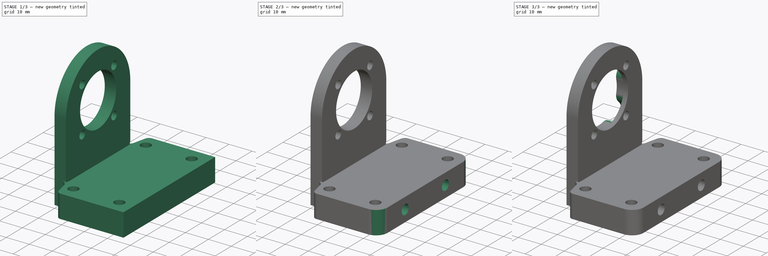
[diagram: build sequence overview — one tinted view per stage of 3, left to right]
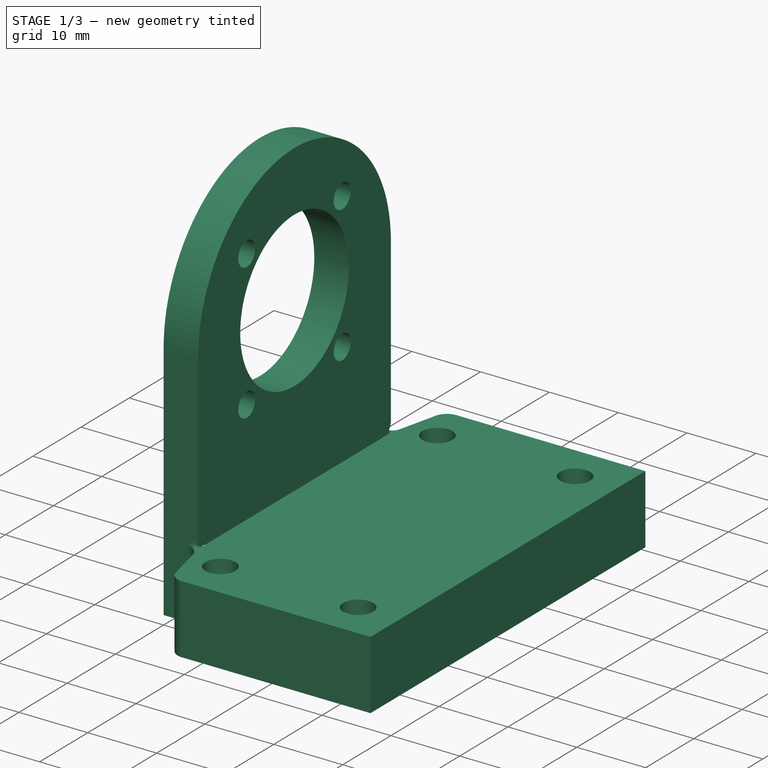
[diagram: stage 1 of 3 — iso view after this stage's code; geometry added in this stage tinted green]
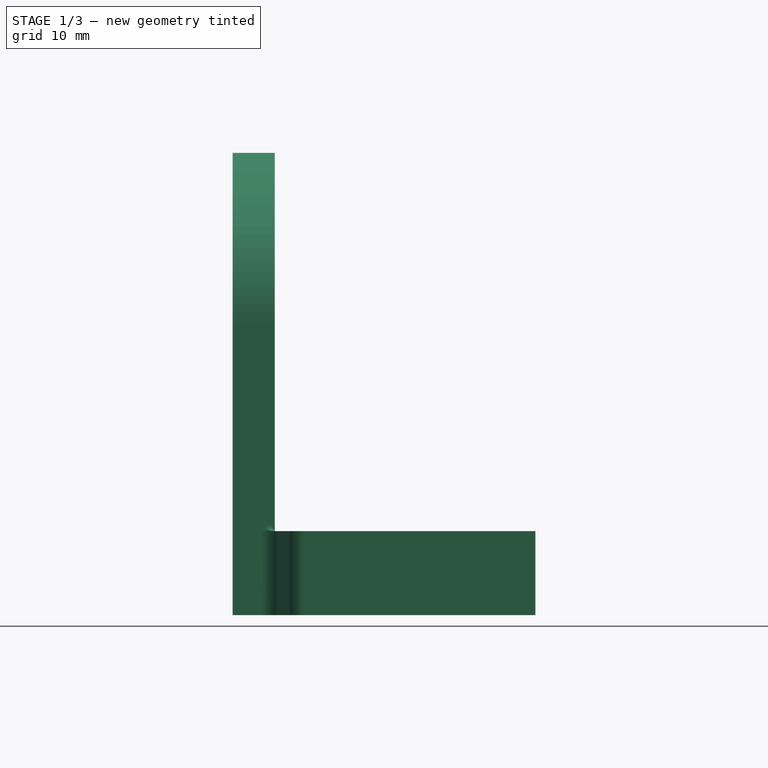
[diagram: stage 1 of 3 — front view after this stage's code; geometry added in this stage tinted green]
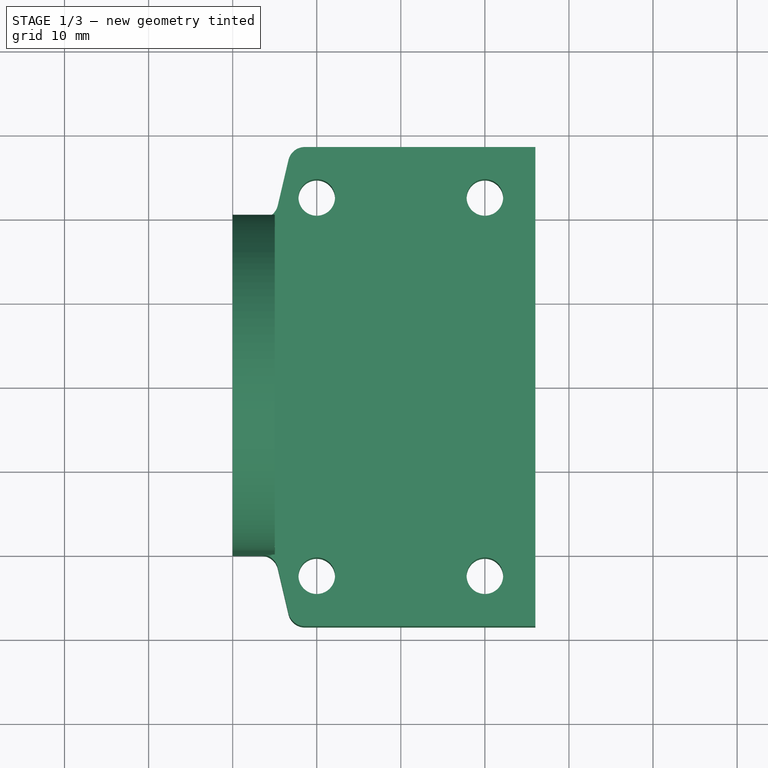
[diagram: stage 1 of 3 — top view after this stage's code; geometry added in this stage tinted green]
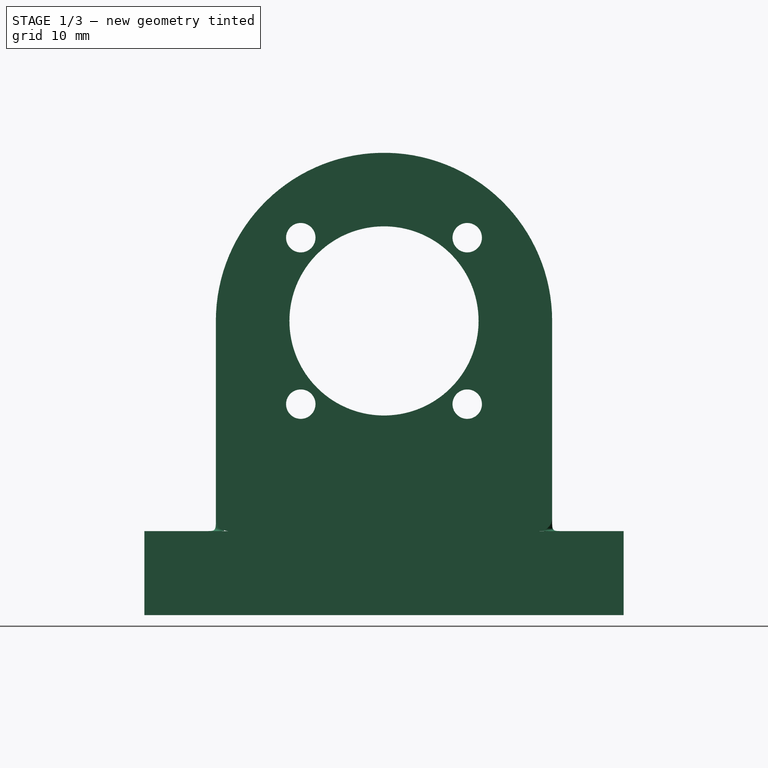
[diagram: stage 1 of 3 — right view after this stage's code; geometry added in this stage tinted green]
FCSTD DOCUMENT  (FreeCAD 1.1R42863 (Git))
Label: SlidesMotorMount
License: All rights reserved
LicenseURL: https://en.wikipedia.org/wiki/All_rights_reserved
objects: Sketcher::SketchObject×4, PartDesign::Fillet×3, PartDesign::Pad×2, PartDesign::Pocket×2, App::Point×1, PartDesign::PolarPattern×1, PartDesign::Body×1
note: 32 computed .brp shape members not serialized (recipe doc carries the construction recipe); baked Part::Feature solids carry a one-line shape summary decoded from their .brp
EXTERNAL_REF file=../Variables.FCStd obj=Spreadsheet

FEATURE [App::Point] Origin001
  Role = Origin
FEATURE [Sketcher::SketchObject] Sketch
  ArcFitTolerance = 1e-06
  AttachmentSupport = -> [YZ_Plane]
  ExternalTypes = [0]
  FullyConstrained = true
  MakeInternals = false
  MapMode = 5
  Placement = pos=(0,0,0) rot=(0.57735,0.57735,0.57735;2.0944rad)
  sketch-geometry (14):
    g0: Circle CenterX=0 CenterY=0 CenterZ=0 NormalX=0 NormalY=0 NormalZ=1 AngleXU=0 Radius=11.25
    g1: LineSegment [constr] StartX=-9.9 StartY=-9.9 StartZ=0 EndX=9.9 EndY=-9.9 EndZ=0
    g2: LineSegment [constr] StartX=9.9 StartY=-9.9 StartZ=0 EndX=9.9 EndY=9.9 EndZ=0
    g3: LineSegment [constr] StartX=9.9 StartY=9.9 StartZ=0 EndX=-9.9 EndY=9.9 EndZ=0
    g4: LineSegment [constr] StartX=-9.9 StartY=9.9 StartZ=0 EndX=-9.9 EndY=-9.9 EndZ=0
    g5: GeomPoint [constr] X=0 Y=0 Z=0
    g6: Circle CenterX=-9.9 CenterY=9.9 CenterZ=0 NormalX=0 NormalY=0 NormalZ=1 AngleXU=0 Radius=1.75
    g7: Circle CenterX=9.9 CenterY=9.9 CenterZ=0 NormalX=0 NormalY=0 NormalZ=1 AngleXU=0 Radius=1.75
    g8: Circle CenterX=9.9 CenterY=-9.9 CenterZ=0 NormalX=0 NormalY=0 NormalZ=1 AngleXU=0 Radius=1.75
    g9: Circle CenterX=-9.9 CenterY=-9.9 CenterZ=0 NormalX=0 NormalY=0 NormalZ=1 AngleXU=0 Radius=1.75
    g10: ArcOfCircle CenterX=0 CenterY=0 CenterZ=0 NormalX=0 NormalY=0 NormalZ=1 AngleXU=0 Radius=20 StartAngle=0 EndAngle=3.14159
    g11: LineSegment StartX=-20 StartY=2.4e-15 StartZ=0 EndX=-20 EndY=-35 EndZ=0
    g12: LineSegment StartX=-20 StartY=-35 StartZ=0 EndX=20 EndY=-35 EndZ=0
    g13: LineSegment StartX=20 StartY=-35 StartZ=0 EndX=20 EndY=0 EndZ=0
  constraints (34):
    c: Coincident(g0,g-1)
    c: Coincident(g1,g2)
    c: Coincident(g2,g3)
    c: Coincident(g3,g4)
    c: Coincident(g4,g1)
    c: Horizontal(g1)
    c: Horizontal(g3)
    c: Vertical(g2)
    c: Vertical(g4)
    c: Symmetric(g3,g1,g5)
    c: Coincident(g5,g0)
    c: DistanceX(g3,g3) = 19.8
    c: Equal(g2,g3)
    c: Diameter(g0) = 22.5
    c: Diameter(g6) = 3.5
    c: Coincident(g6,g3)
    c: Coincident(g7,g2)
    c: Coincident(g8,g1)
    c: Coincident(g9,g1)
    c: Equal(g9,g8)
    c: Equal(g8,g7)
    c: Equal(g7,g6)
    c: Coincident(g10,g0)
    c: PointOnObject(g10,g-1)
    c: PointOnObject(g10,g-1)
    c: Radius(g10) = 20
    c: Coincident(g11,g10)
    c: Vertical(g11)
    c: Coincident(g12,g11)
    c: Horizontal(g12)
    c: Coincident(g13,g12)
    c: Coincident(g13,g10)
    c: Vertical(g13)
    c: Distance(g0,g12) = 35
FEATURE [PartDesign::Pad] Pad
  Direction = (1,0,0)
  Length = 5
  Length2 = 10
  Placement = pos=(0,0,0) rot=(1,1,1;2.0944rad)
  Profile = -> Sketch
  ReferenceAxis = -> Sketch [N_Axis]
  Refine = true
  Suppressed = false
  Type = 0
FEATURE [Sketcher::SketchObject] Sketch001
  ArcFitTolerance = 1e-06
  AttachmentSupport = -> [Pad]
  ExternalGeometry = -> [Pad]
  ExternalTypes = [0,0]
  FullyConstrained = true
  MakeInternals = false
  MapMode = 5
  Placement = pos=(3.9e-15,-1.17e-14,-35) rot=(0.707107,0.707107,0;3.14159rad)
  expr: Constraints[12] = Variables#Spreadsheet.M4ThroughBoreDiam
  expr: Constraints[8] = Variables#Spreadsheet.SlidesMountY
  expr: Constraints[9] = Variables#Spreadsheet.SlidesMountX
  sketch-geometry (15):
    g0: LineSegment [constr] StartX=22.5 StartY=10 StartZ=0 EndX=22.5 EndY=30 EndZ=0
    g1: GeomPoint [constr] X=22.5 Y=20 Z=0
    g2: GeomPoint [constr] X=-22.5 Y=20 Z=0
    g3: LineSegment [constr] StartX=-22.5 StartY=10 StartZ=0 EndX=-22.5 EndY=30 EndZ=0
    g4: GeomPoint [constr] X=0 Y=20 Z=0
    g5: Circle CenterX=-22.5 CenterY=10 CenterZ=0 NormalX=0 NormalY=0 NormalZ=1 AngleXU=0 Radius=2.175
    g6: Circle CenterX=22.5 CenterY=10 CenterZ=0 NormalX=0 NormalY=0 NormalZ=1 AngleXU=0 Radius=2.175
    g7: Circle CenterX=22.5 CenterY=30 CenterZ=0 NormalX=0 NormalY=0 NormalZ=1 AngleXU=0 Radius=2.175
    g8: Circle CenterX=-22.5 CenterY=30 CenterZ=0 NormalX=0 NormalY=0 NormalZ=1 AngleXU=0 Radius=2.175
    g9: LineSegment StartX=-28.5 StartY=36 StartZ=0 EndX=28.5 EndY=36 EndZ=0
    g10: LineSegment StartX=20 StartY=5 StartZ=0 EndX=28.5 EndY=7 EndZ=0
    g11: LineSegment StartX=-20 StartY=5 StartZ=0 EndX=-28.5 EndY=7 EndZ=0
    g12: LineSegment StartX=-28.5 StartY=7 StartZ=0 EndX=-28.5 EndY=36 EndZ=0
    g13: GeomPoint [constr] X=0 Y=36 Z=0
    g14: LineSegment StartX=28.5 StartY=36 StartZ=0 EndX=28.5 EndY=7 EndZ=0
  constraints (34):
    c: Vertical(g0)
    c: Symmetric(g0,g0,g1)
    c: Vertical(g3)
    c: Symmetric(g3,g3,g2)
    c: Equal(g0,g3)
    c: Horizontal(g2,g1)
    c: PointOnObject(g4,g-2)
    c: Symmetric(g2,g1,g4)
    c: DistanceY(g3,g3) = 20
    c: Distance(g0,g3) = 45
    c: Distance(g4,g-4) = 15
    c: Coincident(g5,g3)
    c: Diameter(g5) = 4.35
    c: Coincident(g6,g0)
    c: Coincident(g7,g0)
    c: Coincident(g8,g3)
    c: Equal(g8,g5)
    c: Equal(g5,g6)
    c: Equal(g6,g7)
    c: Horizontal(g9)
    c: Coincident(g10,g-4)
    c: Coincident(g11,g-4)
    c: Coincident(g12,g11)
    c: Coincident(g12,g9)
    c: Vertical(g12)
    c: Symmetric(g9,g9,g13)
    c: PointOnObject(g13,g-2)
    c: Distance(g12,g3) = 6
    c: Distance(g3,g9) = 6
    c: DistanceY(g10,g0) = 3
    c: Horizontal(g11,g10)
    c: Coincident(g14,g9)
    c: Coincident(g14,g10)
    c: Vertical(g14)
FEATURE [PartDesign::Pad] Pad001
  BaseFeature = -> Pad
  Direction = (0,0,-1)
  Length = 10
  Length2 = 10
  Placement = pos=(0,0,0) rot=(1,1,1;2.0944rad)
  Profile = -> Sketch001
  ReferenceAxis = -> Sketch001 [N_Axis]
  Refine = true
  Reversed = true
  Suppressed = false
  Type = 0
FEATURE [PartDesign::Fillet] Fillet
  Base = -> Pad001 [Edge28,Edge12,Edge25,Edge7]
  BaseFeature = -> Pad001
  Placement = pos=(0,0,0) rot=(1,1,1;2.0944rad)
  Radius = 2
  Refine = true
  SupportTransform = false
  Suppressed = false
  UseAllEdges = false
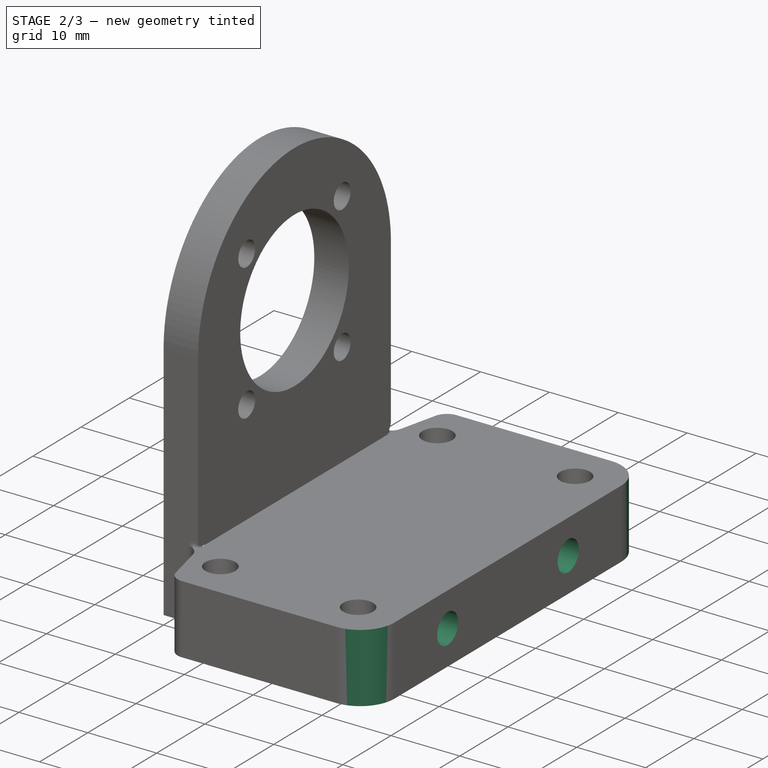
[diagram: stage 2 of 3 — iso view after this stage's code; geometry added in this stage tinted green]
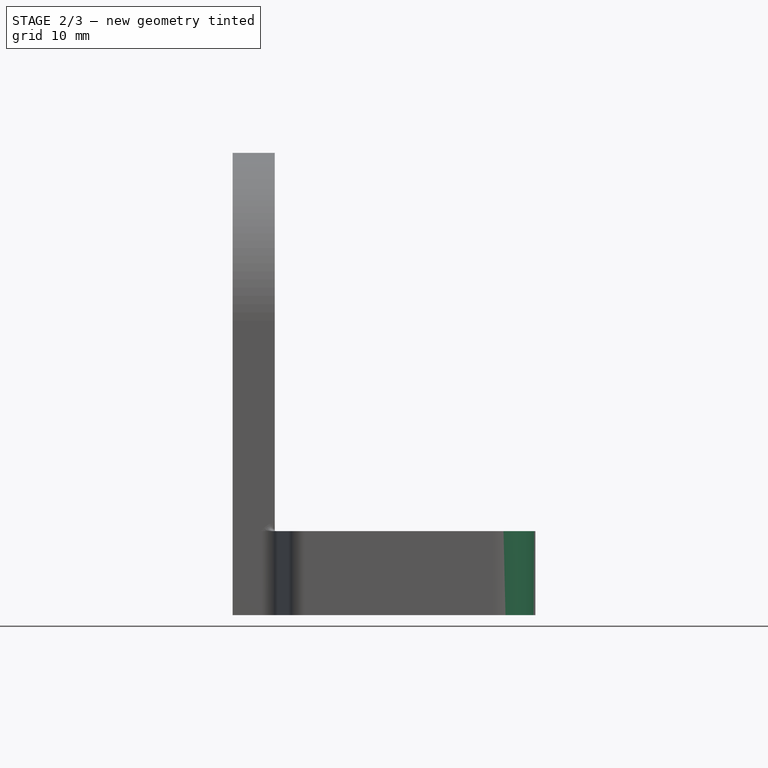
[diagram: stage 2 of 3 — front view after this stage's code; geometry added in this stage tinted green]
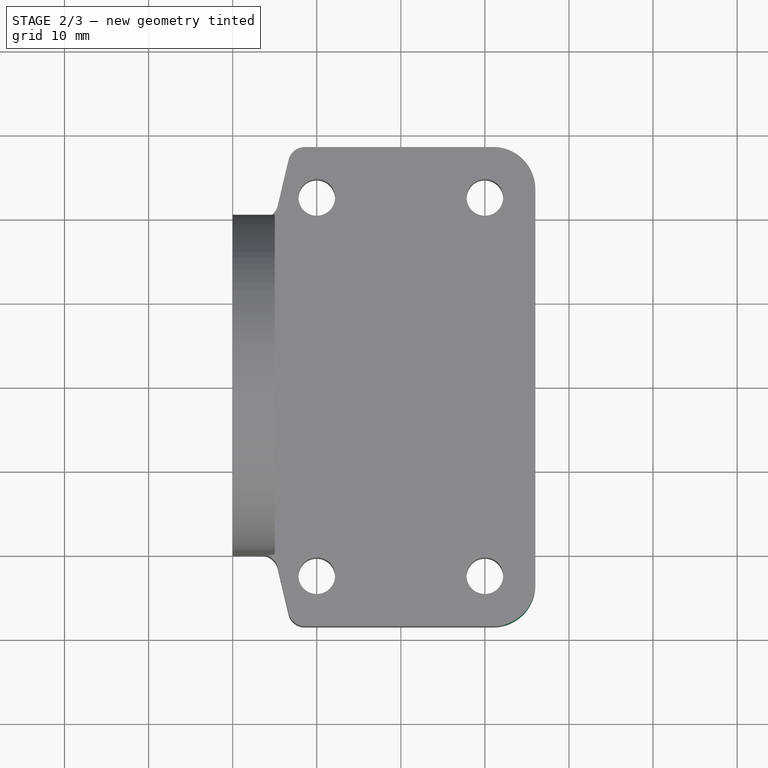
[diagram: stage 2 of 3 — top view after this stage's code; geometry added in this stage tinted green]
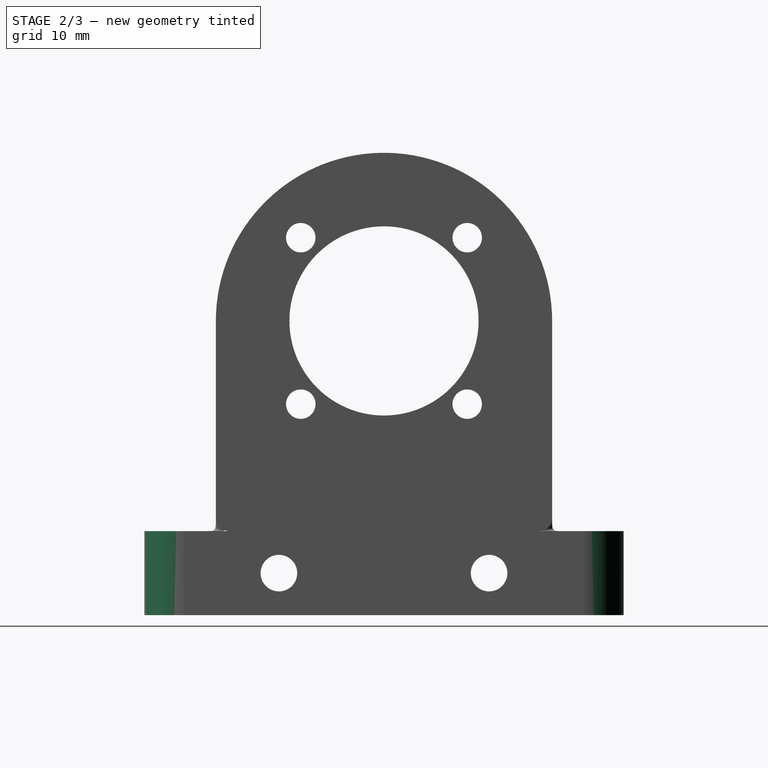
[diagram: stage 2 of 3 — right view after this stage's code; geometry added in this stage tinted green]
FEATURE [PartDesign::Fillet] Fillet001
  Base = -> Fillet [Edge55,Edge51]
  BaseFeature = -> Fillet
  Placement = pos=(0,0,0) rot=(1,1,1;2.0944rad)
  Radius = 5
  Refine = true
  SupportTransform = false
  Suppressed = false
  UseAllEdges = false
FEATURE [Sketcher::SketchObject] Sketch002
  ArcFitTolerance = 1e-06
  AttachmentSupport = -> [Fillet001]
  ExternalGeometry = -> [Fillet001]
  ExternalTypes = [0,0]
  FullyConstrained = true
  MakeInternals = false
  MapMode = 5
  Placement = pos=(3.2e-15,0,0) rot=(0.57735,0.57735,-0.57735;4.18879rad)
  expr: Constraints[8] = Variables#Spreadsheet.M4ThroughBoreDiam
  sketch-geometry (6):
    g0: GeomPoint [constr] X=-2.25e-14 Y=35 Z=0
    g1: GeomPoint [constr] X=26.9581 Y=30 Z=0
    g2: LineSegment [constr] StartX=-12.5 StartY=30 StartZ=0 EndX=12.5 EndY=30 EndZ=0
    g3: GeomPoint [constr] X=-2.25e-14 Y=30 Z=0
    g4: Circle CenterX=12.5 CenterY=30 CenterZ=0 NormalX=0 NormalY=0 NormalZ=1 AngleXU=0 Radius=2.175
    g5: Circle CenterX=-12.5 CenterY=30 CenterZ=0 NormalX=0 NormalY=0 NormalZ=1 AngleXU=0 Radius=2.175
  constraints (11):
    c: Symmetric(g-4,g-4,g0)
    c: Symmetric(g-3,g-3,g1)
    c: Distance(g2) = 25
    c: Horizontal(g2)
    c: Symmetric(g2,g2,g3)
    c: Vertical(g3,g0)
    c: Horizontal(g3,g1)
    c: Coincident(g4,g2)
    c: Diameter(g4) = 4.35
    c: Coincident(g5,g2)
    c: Equal(g4,g5)
FEATURE [PartDesign::Pocket] Pocket
  BaseFeature = -> Fillet001
  Direction = (1,0,0)
  Length = 0
  Length2 = 5
  Placement = pos=(0,0,0) rot=(1,1,1;2.0944rad)
  Profile = -> Sketch002
  ReferenceAxis = -> Sketch002 [N_Axis]
  Refine = true
  Suppressed = false
  Type = 3
  UpToFace = -> Fillet001 [Face5]
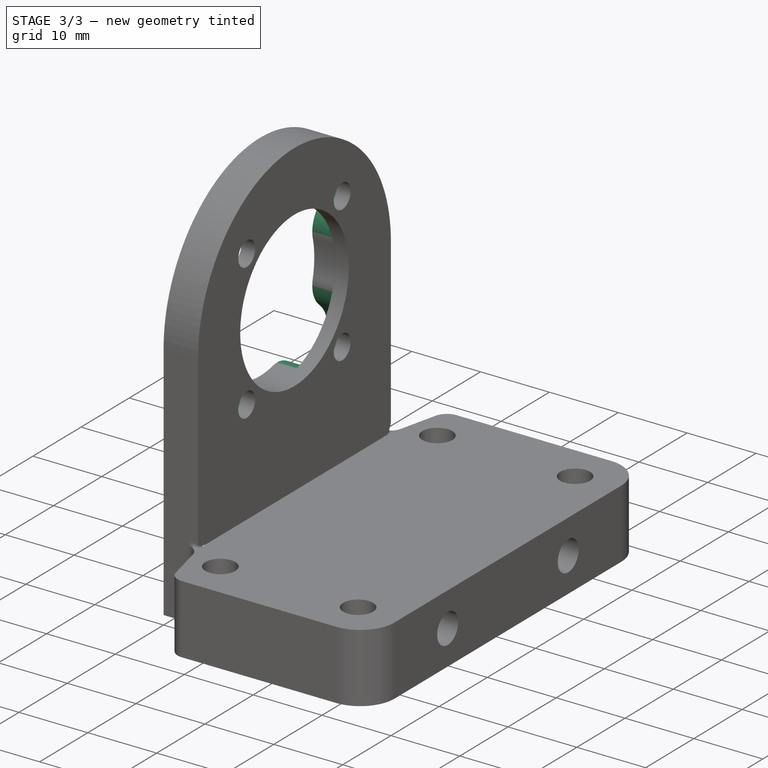
[diagram: stage 3 of 3 — iso view after this stage's code; geometry added in this stage tinted green]
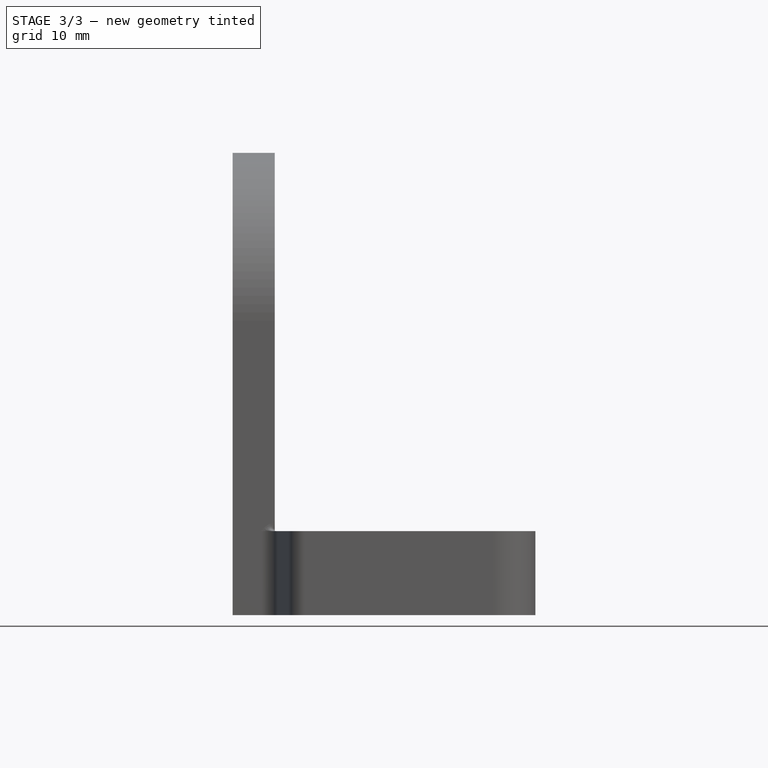
[diagram: stage 3 of 3 — front view after this stage's code; geometry added in this stage tinted green]
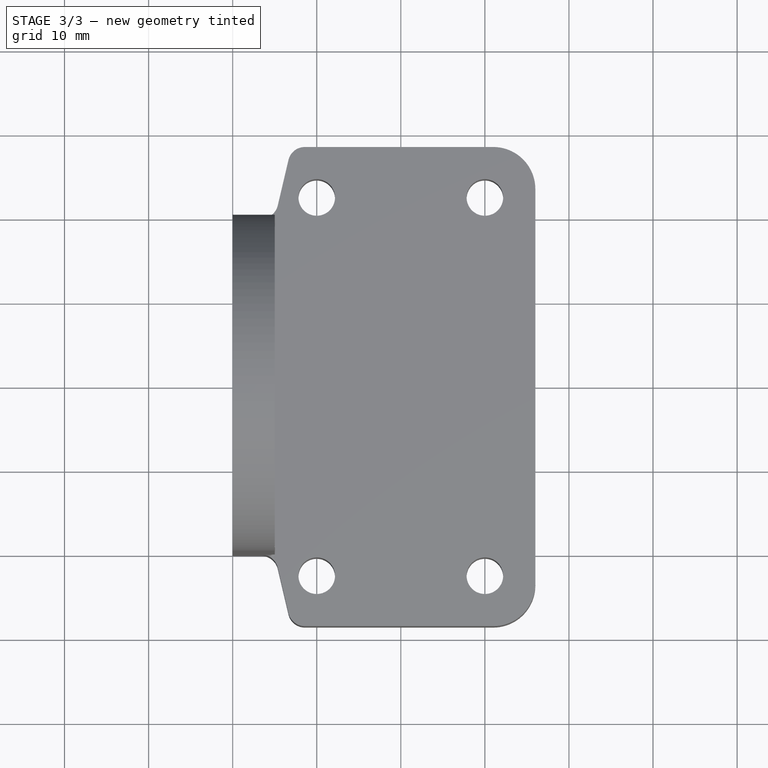
[diagram: stage 3 of 3 — top view after this stage's code; geometry added in this stage tinted green]
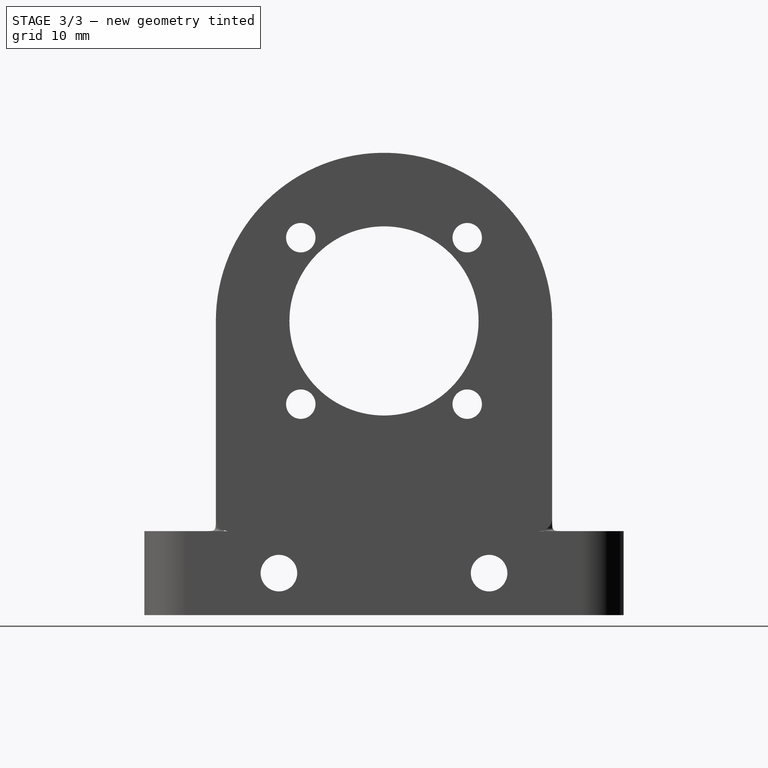
[diagram: stage 3 of 3 — right view after this stage's code; geometry added in this stage tinted green]
FEATURE [Sketcher::SketchObject] Sketch003
  ArcFitTolerance = 1e-06
  AttachmentSupport = -> [Pocket]
  ExternalGeometry = -> [Pocket]
  ExternalTypes = [0,0,0,0,0]
  FullyConstrained = true
  MakeInternals = false
  MapMode = 5
  Placement = pos=(4.9e-15,0,0) rot=(0.57735,0.57735,-0.57735;4.18879rad)
  sketch-geometry (4):
    g0: ArcOfCircle CenterX=-9.9 CenterY=-9.9 CenterZ=0 NormalX=0 NormalY=0 NormalZ=1 AngleXU=0 Radius=4 StartAngle=2.35619 EndAngle=5.49779
    g1: LineSegment StartX=-7.07157 StartY=-12.7284 StartZ=0 EndX=-4.60671 EndY=-10.2636 EndZ=0
    g2: LineSegment StartX=-12.7284 StartY=-7.07157 StartZ=0 EndX=-10.2636 EndY=-4.60671 EndZ=0
    g3: ArcOfCircle CenterX=7.468e-13 CenterY=8.769e-13 CenterZ=0 NormalX=0 NormalY=0 NormalZ=1 AngleXU=0 Radius=11.25 StartAngle=3.56348 EndAngle=4.2905
  constraints (11):
    c: Coincident(g0,g-4)
    c: PointOnObject(g1,g-3)
    c: PointOnObject(g2,g-3)
    c: Parallel(g2,g1)
    c: Equal(g1,g2)
    c: Diameter(g0) = 8
    c: Tangent(g0,g1) = -1.5708
    c: Tangent(g0,g2) = 1.5708
    c: Coincident(g3,g2)
    c: Coincident(g3,g1)
    c: Equal(g3,g-3)
FEATURE [PartDesign::Pocket] Pocket001
  BaseFeature = -> Pocket
  Direction = (1,0,0)
  Length = 3
  Length2 = 5
  Offset = 2
  Placement = pos=(0,0,0) rot=(1,1,1;2.0944rad)
  Profile = -> Sketch003
  ReferenceAxis = -> Sketch003 [N_Axis]
  Refine = true
  Suppressed = false
  Type = 0
FEATURE [PartDesign::Fillet] Fillet002
  Base = -> Pocket001 [Edge87,Edge89]
  BaseFeature = -> Pocket001
  Placement = pos=(0,0,0) rot=(1,1,1;2.0944rad)
  Radius = 4
  Refine = true
  SupportTransform = false
  Suppressed = false
  UseAllEdges = false
FEATURE [PartDesign::PolarPattern] PolarPattern
  Angle = 360
  Axis = -> Sketch003 [N_Axis]
  BaseFeature = -> Fillet002
  Mode = 0
  Occurrences = 4
  Offset = 120
  Originals = -> [Pocket001,Fillet002]
  Placement = pos=(0,0,0) rot=(1,1,1;2.0944rad)
  Refine = true
  Suppressed = false
  TransformMode = 0
FEATURE [PartDesign::Body] Body  label="Slides Motor Mount"
  AllowCompound = true
  Group = -> [Sketch,Pad,Sketch001,Pad001,Fillet,Fillet001,Sketch002,Pocket,Sketch003,Pocket001,Fillet002,PolarPattern]
  Origin = -> Origin
  Tip = -> PolarPattern
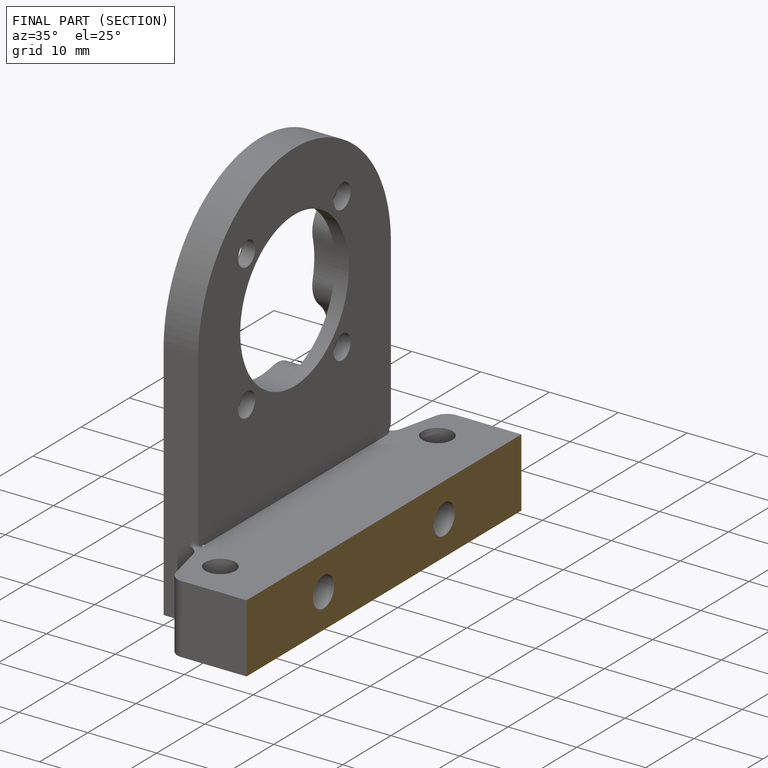
[diagram: finished part — half-section view (interior)]
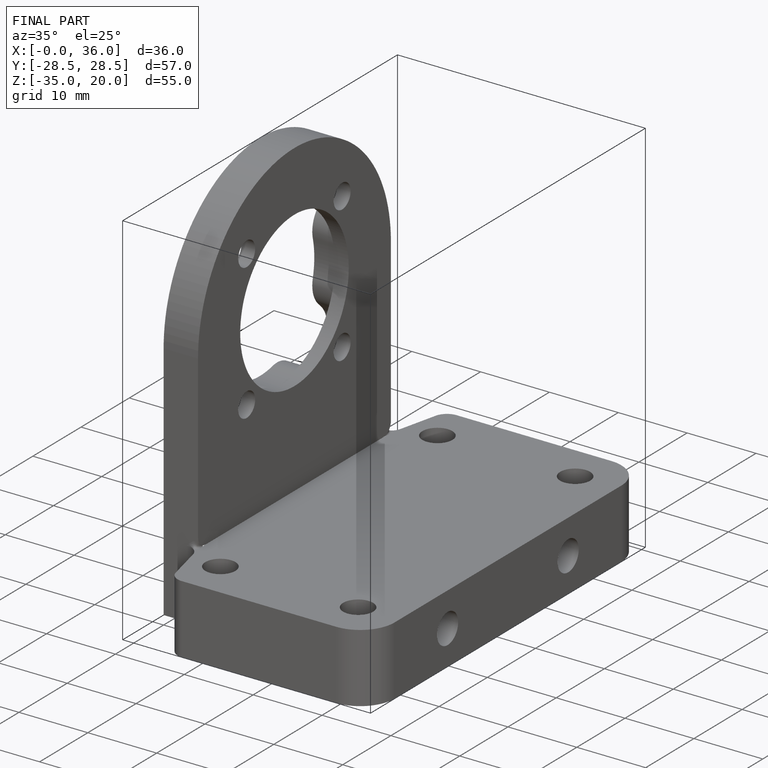
[diagram: finished part — iso view with bounding-box wireframe]
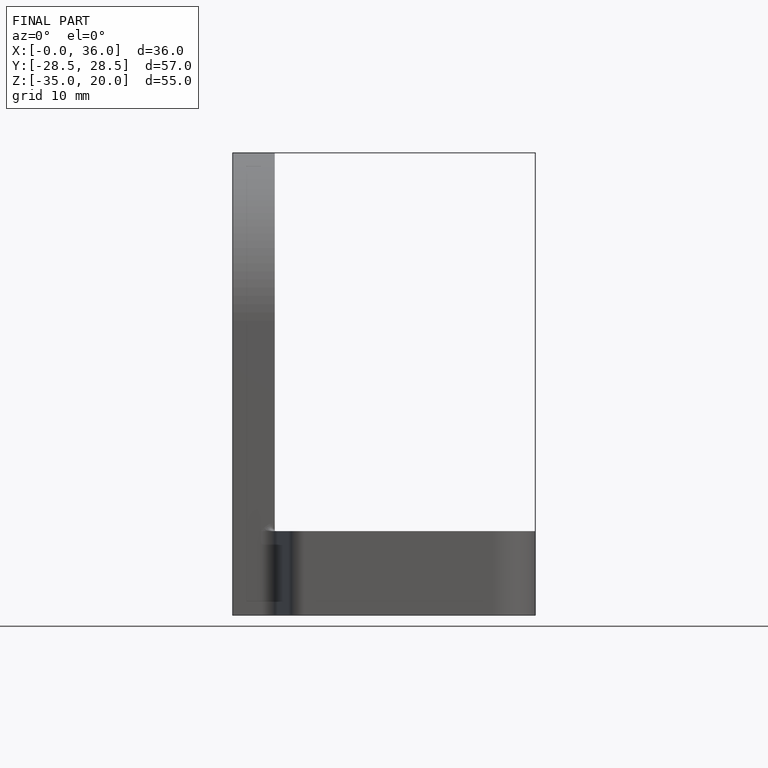
[diagram: finished part — front view with bounding-box wireframe]
